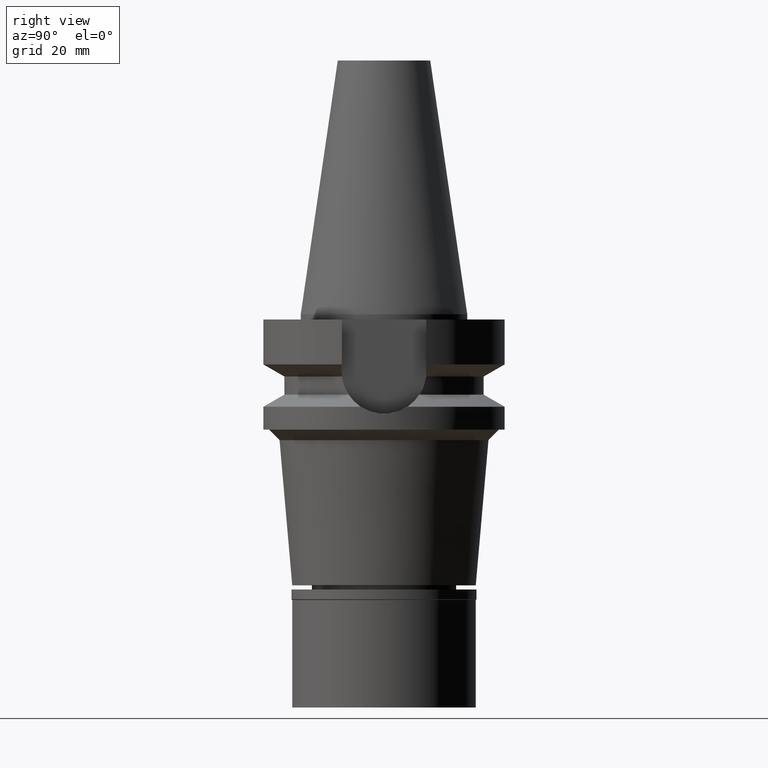
[diagram: clean part render]
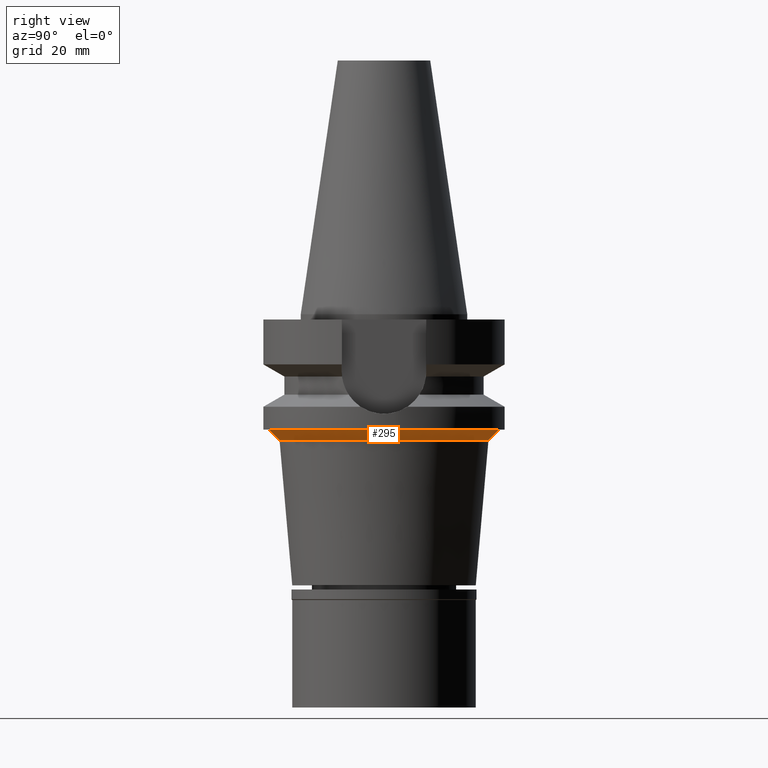
[diagram: same view with one face highlighted and labeled with its STEP entity id]
A machine part, right view. The second image highlights one B-rep face of the part: STEP entity #295.
In plain terms, the highlighted conical surface has half-angle 45 deg.
Its self-contained STEP definition (entity closure, byte-faithful):
#52 = AXIS2_PLACEMENT_3D ( 'NONE', #1801, #386, #617 ) ;
#108 = LINE ( 'NONE', #2939, #1764 ) ;
#241 = VERTEX_POINT ( 'NONE', #1639 ) ;
#295 = ADVANCED_FACE ( 'NONE', ( #974 ), #2175, .T. ) ;
#311 = VERTEX_POINT ( 'NONE', #2830 ) ;
#386 = DIRECTION ( 'NONE',  ( 0.0000000000000000000, 0.0000000000000000000, -1.000000000000000000 ) ) ;
#451 = CARTESIAN_POINT ( 'NONE',  ( 0.0000000000000000000, 0.0000000000000000000, -24.00000000000000000 ) ) ;
#617 = DIRECTION ( 'NONE',  ( 0.0000000000000000000, 1.000000000000000000, 0.0000000000000000000 ) ) ;
#705 = VECTOR ( 'NONE', #1739, 1000.000000000000000 ) ;
#787 = CIRCLE ( 'NONE', #1148, 19.92343597965999891 ) ;
#974 = FACE_OUTER_BOUND ( 'NONE', #1621, .T. ) ;
#1000 = CARTESIAN_POINT ( 'NONE',  ( 0.0000000000000000000, -19.92343597966999980, -24.00000000000000000 ) ) ;
#1046 = VERTEX_POINT ( 'NONE', #2411 ) ;
#1148 = AXIS2_PLACEMENT_3D ( 'NONE', #451, #2922, #2847 ) ;
#1162 = VERTEX_POINT ( 'NONE', #1000 ) ;
#1189 = CIRCLE ( 'NONE', #52, 21.92343597966999980 ) ;
#1266 = EDGE_CURVE ( 'NONE', #1046, #1162, #108, .T. ) ;
#1301 = EDGE_CURVE ( 'NONE', #311, #1046, #1189, .T. ) ;
#1418 = CARTESIAN_POINT ( 'NONE',  ( 0.0000000000000000000, 0.0000000000000000000, -23.00000000000000000 ) ) ;
#1476 = AXIS2_PLACEMENT_3D ( 'NONE', #1418, #2619, #2390 ) ;
#1621 = EDGE_LOOP ( 'NONE', ( #1807, #2311, #2728, #1751 ) ) ;
#1639 = CARTESIAN_POINT ( 'NONE',  ( 0.0000000000000000000, 19.92343597966999980, -24.00000000000000000 ) ) ;
#1739 = DIRECTION ( 'NONE',  ( 0.0000000000000000000, -0.7071067811870975772, -0.7071067811859975683 ) ) ;
#1747 = DIRECTION ( 'NONE',  ( 0.0000000000000000000, 0.7071067811870975772, -0.7071067811859975683 ) ) ;
#1751 = ORIENTED_EDGE ( 'NONE', *, *, #2675, .F. ) ;
#1764 = VECTOR ( 'NONE', #1747, 1000.000000000000000 ) ;
#1801 = CARTESIAN_POINT ( 'NONE',  ( 0.0000000000000000000, 0.0000000000000000000, -22.00000000000000000 ) ) ;
#1807 = ORIENTED_EDGE ( 'NONE', *, *, #1301, .T. ) ;
#2175 = CONICAL_SURFACE ( 'NONE', #1476, 20.92343597967000335, 0.7853981633972997312 ) ;
#2236 = CARTESIAN_POINT ( 'NONE',  ( 0.0000000000000000000, 21.92343597966999980, -22.00000000000000000 ) ) ;
#2311 = ORIENTED_EDGE ( 'NONE', *, *, #1266, .T. ) ;
#2390 = DIRECTION ( 'NONE',  ( 0.0000000000000000000, 1.000000000000000000, 0.0000000000000000000 ) ) ;
#2411 = CARTESIAN_POINT ( 'NONE',  ( 0.0000000000000000000, -21.92343597966999980, -22.00000000000000000 ) ) ;
#2416 = EDGE_CURVE ( 'NONE', #1162, #241, #787, .T. ) ;
#2619 = DIRECTION ( 'NONE',  ( 0.0000000000000000000, 0.0000000000000000000, 1.000000000000000000 ) ) ;
#2675 = EDGE_CURVE ( 'NONE', #311, #241, #2692, .T. ) ;
#2692 = LINE ( 'NONE', #2236, #705 ) ;
#2728 = ORIENTED_EDGE ( 'NONE', *, *, #2416, .T. ) ;
#2830 = CARTESIAN_POINT ( 'NONE',  ( 0.0000000000000000000, 21.92343597966999980, -22.00000000000000000 ) ) ;
#2847 = DIRECTION ( 'NONE',  ( 0.0000000000000000000, -1.000000000000000000, 0.0000000000000000000 ) ) ;
#2922 = DIRECTION ( 'NONE',  ( 0.0000000000000000000, 0.0000000000000000000, 1.000000000000000000 ) ) ;
#2939 = CARTESIAN_POINT ( 'NONE',  ( 0.0000000000000000000, -21.92343597966999980, -22.00000000000000000 ) ) ;